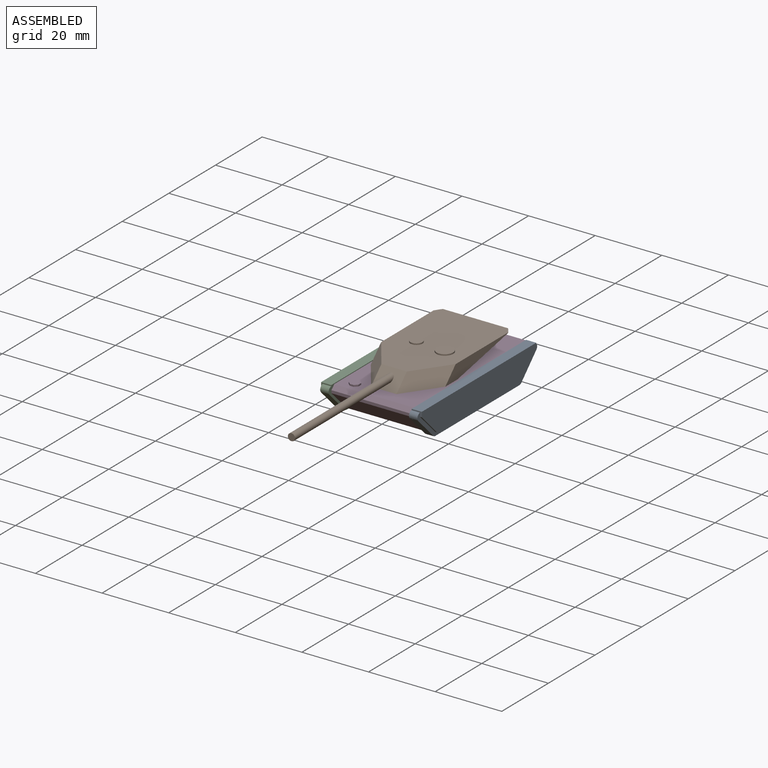
[diagram: assembled view]
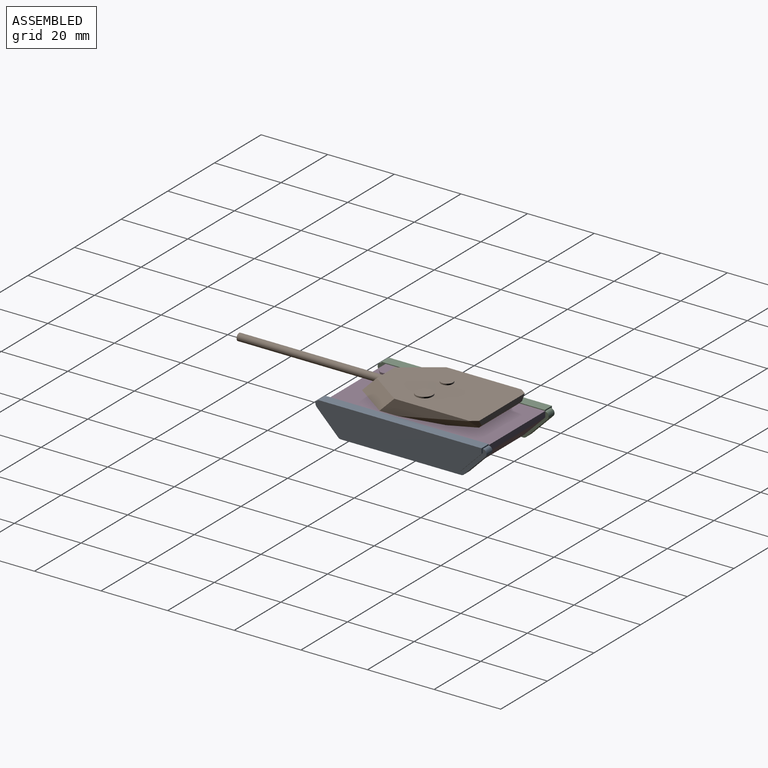
[diagram: assembled view, second angle]
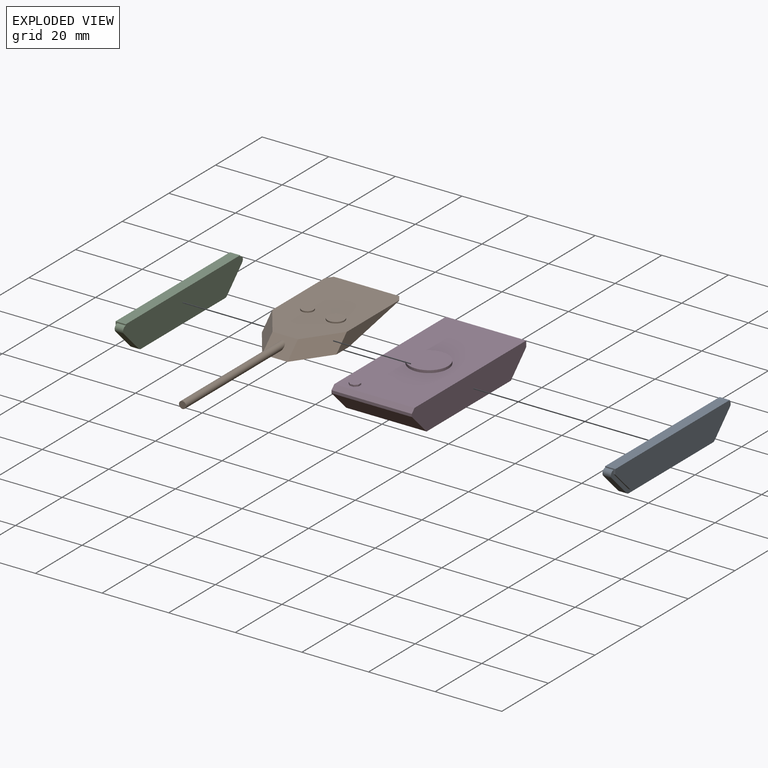
[diagram: exploded view]
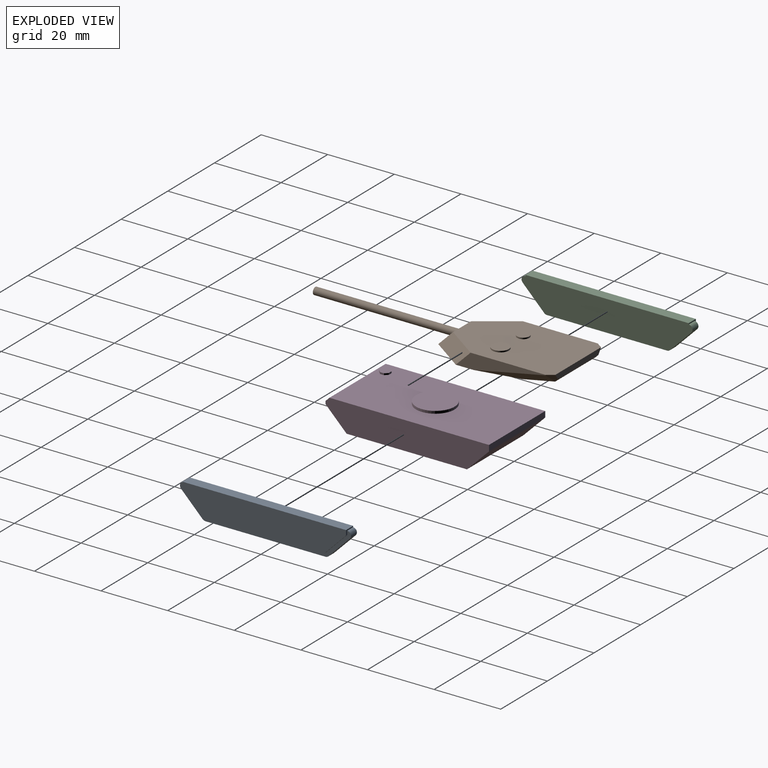
[diagram: exploded view, second angle]
ASSEMBLY  parts=4 mates=3
PART A: 18 faces, bbox 3x51.3x9.2 mm
  f0: plane 3.05x1.5mm, normal (0,-1,0), area 1.7mm2, adj f3,f4,f6,f7,f8,f17
  f1: plane 6.53x6.48mm, normal (0,0.71,-0.7), area 4.7mm2, adj f2,f5,f6,f17
  f2: plane 3.05x1.5mm, normal (0,1,0), area 1.7mm2, adj f1,f3,f6,f7,f16,f17
  f3: plane 49.07x3.05mm, normal (0,0,1), area 149.6mm2, adj f0,f2,f6,f7
  f4: plane 6.53x6.47mm, normal (0,-0.71,-0.7), area 4.7mm2, adj f0,f5,f6,f17
  f5: plane 36.12x0.51mm, normal (0,0,-1), area 18.3mm2, adj f1,f4,f6,f17
  f6: plane 49.07x8.03mm, normal (1,0,0), area 351.7mm2, adj f0,f1,f2,f3,f4,f5
  f7: plane 51.35x9.17mm, normal (-1,0,0), area 417.9mm2, adj f0,f2,f3,f8,f9,f10,f11,f12
  f8: cylinder r=1.15mm len=2.54mm, axis (-1,0,0), area 6.8mm2, adj f0,f7,f9,f17
  f9: plane 2.54x0mm, normal (0,-0.7,0.71), area 0mm2, adj f7,f8,f10,f17
  f10: plane 6.52x6.48mm, normal (0,-0.71,-0.7), area 23.3mm2, adj f7,f9,f11,f17
  f11: cylinder r=1.14mm len=2.54mm, axis (-1,0,0), area 2.3mm2, adj f7,f10,f12,f17
  f12: plane 36.12x2.54mm, normal (0,0,-1), area 91.7mm2, adj f7,f11,f13,f17
  f13: cylinder r=1.14mm len=2.54mm, axis (-1,0,0), area 2.3mm2, adj f7,f12,f14,f17
  f14: plane 6.53x6.48mm, normal (0,0.71,-0.7), area 23.4mm2, adj f7,f13,f15,f17
  f15: plane 2.54x0mm, normal (0,0.7,0.71), area 0mm2, adj f7,f14,f16,f17
  f16: cylinder r=1.13mm len=2.54mm, axis (-1,0,0), area 6.8mm2, adj f2,f7,f15,f17
  f17: plane 51.35x8.81mm, normal (1,0,0), area 66.2mm2, adj f0,f1,f2,f4,f5,f8,f9,f10
PART B: 23 faces, bbox 22.4x78.9x4.9 mm
  f0: plane 26.98x4.45mm, normal (1,0,0), area 63mm2, adj f3,f4,f7,f19,f20
  f1: plane 19.63x1.65mm, normal (0,1,0), area 30.5mm2, adj f3,f8,f20,f22
  f2: plane 26.98x4.45mm, normal (-1,0,0), area 63mm2, adj f3,f4,f6,f21,f22
  f3: plane 34.89x22.37mm, normal (0,0,1), area 671mm2, adj f0,f1,f2,f5,f6,f7,f14,f16
  f4: plane 28.67x22.37mm, normal (0,0,-1), area 426.2mm2, adj f0,f2,f5,f6,f7,f10,f18,f19
  f5: plane 7.64x4.45mm, normal (0,-0.71,0.71), area 42.9mm2, adj f3,f4,f6,f7,f12
  f6: plane 14.86x7.37mm, normal (-0.71,-0.5,0.5), area 65.5mm2, adj f2,f3,f4,f5
  f7: plane 14.86x7.37mm, normal (0.71,-0.5,0.5), area 65.5mm2, adj f0,f3,f4,f5
  f8: plane 17.29x0.82mm, normal (0,0.71,-0.71), area 20mm2, adj f1,f9,f20,f22
  f9: plane 17.31x0.08mm, normal (0,0.38,-0.92), area 1.4mm2, adj f8,f18,f19,f20,f21,f22
  f10: cylinder r=5.79mm len=11.58mm, axis (0,0,-1), area 27.7mm2, adj f4,f11
  f11: plane 11.58x11.58mm, normal (0,0,-1), area 105.4mm2, adj f10
  f12: cylinder r=1.08mm len=43.06mm, axis (0,1,0), area 284.1mm2, adj f5,f13
  f13: plane 2.15x2.15mm, normal (0,-1,0), area 3.6mm2, adj f12
  f14: cylinder r=2.51mm len=5.03mm, axis (0,0,-1), area 6.4mm2, adj f3,f15
  f15: plane 5.03x5.03mm, normal (0,0,1), area 19.9mm2, adj f14
  f16: cylinder r=1.81mm len=3.63mm, axis (0,0,-1), area 4.6mm2, adj f3,f17
  f17: plane 3.63x3.63mm, normal (0,0,1), area 10.3mm2, adj f16
  f18: plane 17.29x9.77mm, normal (0,0.2,-0.98), area 172.3mm2, adj f4,f9,f19,f21
  f19: plane 22.84x4.3mm, normal (0.71,0.14,-0.69), area 57.5mm2, adj f0,f4,f9,f18,f20
  f20: plane 2.54x2.48mm, normal (0.71,0.5,-0.5), area 4.8mm2, adj f0,f1,f3,f8,f9,f19
  f21: plane 22.84x4.3mm, normal (-0.71,0.14,-0.69), area 57.5mm2, adj f2,f4,f9,f18,f22
  f22: plane 2.54x2.48mm, normal (-0.71,0.5,-0.5), area 4.8mm2, adj f1,f2,f3,f8,f9,f21
PART C: 18 faces, bbox 3x51.3x9.2 mm
  f0: plane 3.05x1.5mm, normal (0,1,0), area 1.7mm2, adj f1,f2,f6,f7,f16,f17
  f1: plane 6.53x6.46mm, normal (0,0.71,-0.7), area 4.7mm2, adj f0,f5,f6,f17
  f2: plane 49.05x3.05mm, normal (0,0,1), area 149.5mm2, adj f0,f3,f6,f7
  f3: plane 3.05x1.5mm, normal (0,-1,0), area 1.7mm2, adj f2,f4,f6,f7,f8,f17
  f4: plane 6.53x6.48mm, normal (0,-0.71,-0.7), area 4.7mm2, adj f3,f5,f6,f17
  f5: plane 36.12x0.51mm, normal (0,0,-1), area 18.3mm2, adj f1,f4,f6,f17
  f6: plane 49.05x8.03mm, normal (-1,0,0), area 351.7mm2, adj f0,f1,f2,f3,f4,f5
  f7: plane 51.34x9.17mm, normal (1,0,0), area 418mm2, adj f0,f2,f3,f8,f9,f10,f11,f12
  f8: cylinder r=1.14mm len=2.54mm, axis (1,0,0), area 6.8mm2, adj f3,f7,f9,f17
  f9: plane 2.54x0mm, normal (0,-0.7,0.71), area 0mm2, adj f7,f8,f10,f17
  f10: plane 6.53x6.48mm, normal (0,-0.71,-0.7), area 23.4mm2, adj f7,f9,f11,f17
  f11: cylinder r=1.14mm len=2.54mm, axis (1,0,0), area 2.3mm2, adj f7,f10,f12,f17
  f12: plane 36.12x2.54mm, normal (0,0,-1), area 91.7mm2, adj f7,f11,f13,f17
  f13: cylinder r=1.14mm len=2.54mm, axis (1,0,0), area 2.3mm2, adj f7,f12,f14,f17
  f14: plane 6.52x6.47mm, normal (0,0.71,-0.7), area 23.3mm2, adj f7,f13,f15,f17
  f15: plane 2.54x0mm, normal (0,0.7,0.71), area 0mm2, adj f7,f14,f16,f17
  f16: cylinder r=1.15mm len=2.54mm, axis (1,0,0), area 6.9mm2, adj f0,f7,f15,f17
  f17: plane 51.34x8.82mm, normal (-1,0,0), area 66.3mm2, adj f0,f1,f3,f4,f5,f8,f9,f10
PART D: 20 faces, bbox 24.1x49.1x9.1 mm
  f0: plane 49.08x8.38mm, normal (1,0,0), area 368.7mm2, adj f1,f3,f4,f5,f6,f7,f19
  f1: plane 24.12x1.78mm, normal (0,1,0), area 42.9mm2, adj f0,f2,f4,f7
  f2: plane 49.08x8.38mm, normal (-1,0,0), area 368.7mm2, adj f1,f3,f4,f5,f6,f7,f19
  f3: plane 24.12x0.84mm, normal (0,-1,0), area 20.2mm2, adj f0,f2,f6,f19
  f4: plane 47.89x24.12mm, normal (0,0,1), area 1042.8mm2, adj f0,f1,f2,f8,f10,f11,f12,f13
  f5: plane 36.13x24.12mm, normal (0,0,-1), area 871.3mm2, adj f0,f2,f6,f7
  f6: plane 24.12x6.35mm, normal (0,-0.71,-0.71), area 216.6mm2, adj f0,f2,f3,f5
  f7: plane 24.12x6.6mm, normal (0,0.71,-0.71), area 225.2mm2, adj f0,f1,f2,f5
  f8: cylinder r=5.79mm len=11.58mm, axis (0,0,-1), area 27.7mm2, adj f4,f9
  f9: plane 11.58x11.58mm, normal (0,0,1), area 105.2mm2, adj f8
  f10: plane 0.85x0.85mm, normal (0.71,-0.71,0), area 0.6mm2, adj f4,f11,f17,f18
  f11: plane 1.2x0.51mm, normal (1,0,0), area 0.6mm2, adj f4,f10,f12,f18
  f12: plane 0.85x0.85mm, normal (0.71,0.71,0), area 0.6mm2, adj f4,f11,f13,f18
  f13: plane 1.2x0.51mm, normal (0,1,0), area 0.6mm2, adj f4,f12,f14,f18
  f14: plane 0.85x0.85mm, normal (-0.71,0.71,0), area 0.6mm2, adj f4,f13,f15,f18
  f15: plane 1.2x0.51mm, normal (-1,0,0), area 0.6mm2, adj f4,f14,f16,f18
  f16: plane 0.85x0.85mm, normal (-0.71,-0.71,0), area 0.6mm2, adj f4,f15,f17,f18
  f17: plane 1.2x0.51mm, normal (0,-1,0), area 0.6mm2, adj f4,f10,f16,f18
  f18: plane 2.88x2.88mm, normal (0,0,1), area 6.9mm2, adj f10,f11,f12,f13,f14,f15,f16,f17
  f19: plane 24.12x1.19mm, normal (0,-0.71,0.71), area 40.7mm2, adj f0,f2,f3,f4
PLACE A t=(13.84,-2.49,-1.94)mm
PLACE B t=(1.78,-2.4,5.87)mm
PLACE C t=(-10.28,-3.62,1.81)mm
PLACE D t=(1.78,-2.4,-2.52)mm
MATE parallel B.f10 <-> D.f8  axis (0,0,-1) through (1.78,-2.4,6.63)mm
MATE parallel C.f7 <-> D.f2  axis (1,0,0) through (-10.28,-2.5,1.76)mm
MATE parallel A.f7 <-> D.f0  axis (-1,0,0) through (13.84,-2.5,1.76)mm
